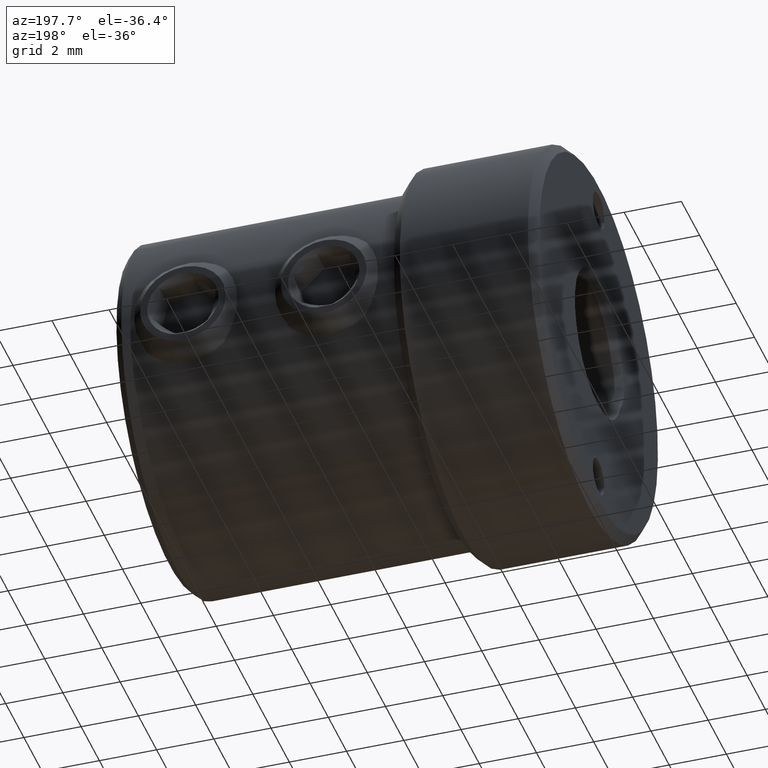
[diagram: clean part render]
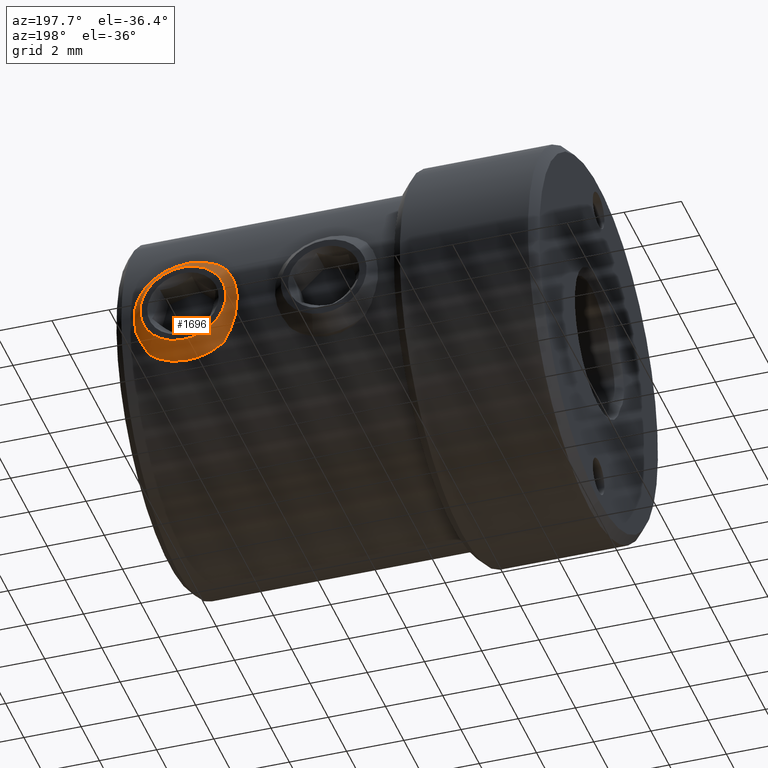
[diagram: same view with one face highlighted and labeled with its STEP entity id]
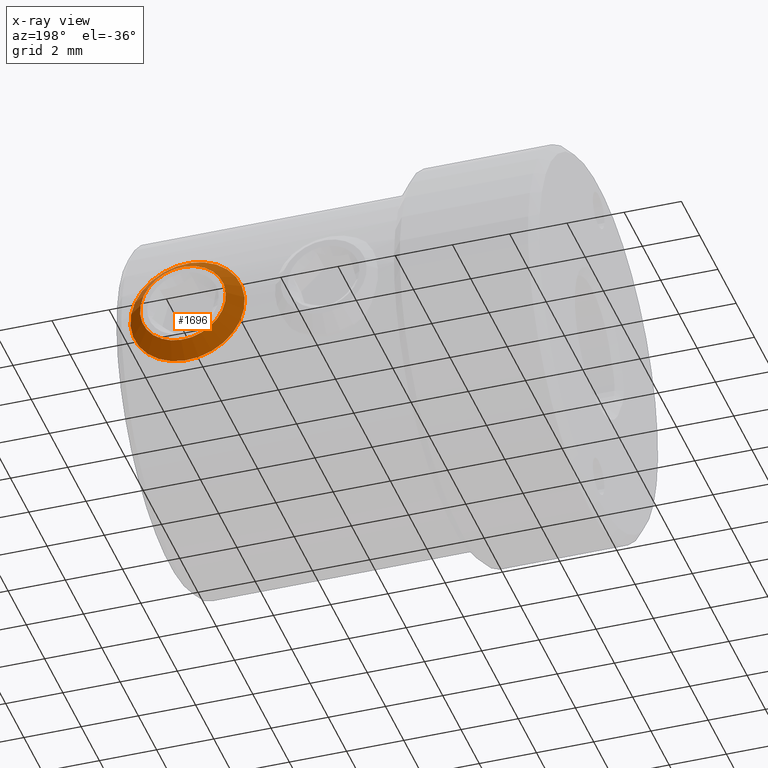
[diagram: x-ray of the same camera — body ghosted, the highlighted face saturated]
A machine part, auxiliary view. The second image highlights one B-rep face of the part: STEP entity #1696.
The next image is the same camera in x-ray: the body ghosted, the highlighted face saturated — about 0% of this face is hidden behind the body in this view.
In plain terms, the highlighted conical surface has half-angle 45 deg.
Its self-contained STEP definition (entity closure, byte-faithful):
#98 = DIRECTION ( 'NONE',  ( 0.6952076503234625449, 4.336808689942018722E-16, -0.7188089613602004491 ) ) ;
#117 = CIRCLE ( 'NONE', #1094, 1.500000000021373792 ) ;
#184 = CONICAL_SURFACE ( 'NONE', #1499, 1.999999999839019660, 0.7853981633406048601 ) ;
#394 = CARTESIAN_POINT ( 'NONE',  ( 13.54281147550005215, 6.350000000042745896, -1.078213442055663718 ) ) ;
#414 = VERTEX_POINT ( 'NONE', #394 ) ;
#607 = EDGE_CURVE ( 'NONE', #414, #414, #117, .T. ) ;
#740 = CARTESIAN_POINT ( 'NONE',  ( 12.49999999999999822, 5.850000000168255276, 2.173134224828871635E-18 ) ) ;
#945 = CARTESIAN_POINT ( 'NONE',  ( 12.49999999999999822, 5.849999999999997868, 2.173134221903702983E-18 ) ) ;
#1094 = AXIS2_PLACEMENT_3D ( 'NONE', #2650, #1161, #2219 ) ;
#1120 = FACE_BOUND ( 'NONE', #3344, .T. ) ;
#1154 = DIRECTION ( 'NONE',  ( 5.083153145339563599E-16, -1.000000000000000000, -1.738507377522700460E-17 ) ) ;
#1161 = DIRECTION ( 'NONE',  ( 5.083153145339563599E-16, -1.000000000000000000, -1.738507377522700460E-17 ) ) ;
#1313 = ORIENTED_EDGE ( 'NONE', *, *, #607, .T. ) ;
#1499 = AXIS2_PLACEMENT_3D ( 'NONE', #740, #2196, #1559 ) ;
#1559 = DIRECTION ( 'NONE',  ( 0.6952076503234627669, 4.336808690291088194E-16, -0.7188089613602002270 ) ) ;
#1696 = ADVANCED_FACE ( 'NONE', ( #3172, #1120 ), #184, .T. ) ;
#1820 = EDGE_LOOP ( 'NONE', ( #2488 ) ) ;
#1854 = EDGE_CURVE ( 'NONE', #3458, #3458, #1946, .T. ) ;
#1946 = CIRCLE ( 'NONE', #2388, 1.999999999999999556 ) ;
#2196 = DIRECTION ( 'NONE',  ( 5.083153145339563599E-16, -1.000000000000000000, -1.738507377522700460E-17 ) ) ;
#2219 = DIRECTION ( 'NONE',  ( 0.6952076503234629890, 5.782411586506962103E-16, -0.7188089613602000050 ) ) ;
#2388 = AXIS2_PLACEMENT_3D ( 'NONE', #945, #1154, #98 ) ;
#2488 = ORIENTED_EDGE ( 'NONE', *, *, #1854, .F. ) ;
#2650 = CARTESIAN_POINT ( 'NONE',  ( 12.49999999999999822, 6.350000000042745008, 1.086567111026036541E-17 ) ) ;
#3172 = FACE_OUTER_BOUND ( 'NONE', #1820, .T. ) ;
#3204 = CARTESIAN_POINT ( 'NONE',  ( 13.89041530064692331, 5.849999999999998757, -1.437617922720400676 ) ) ;
#3344 = EDGE_LOOP ( 'NONE', ( #1313 ) ) ;
#3458 = VERTEX_POINT ( 'NONE', #3204 ) ;